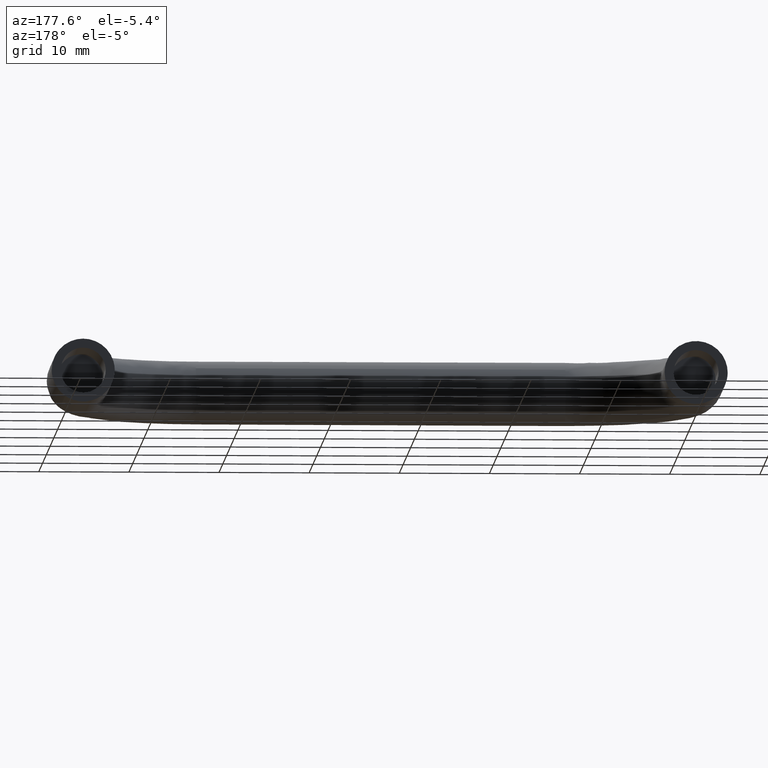
[diagram: clean part render]
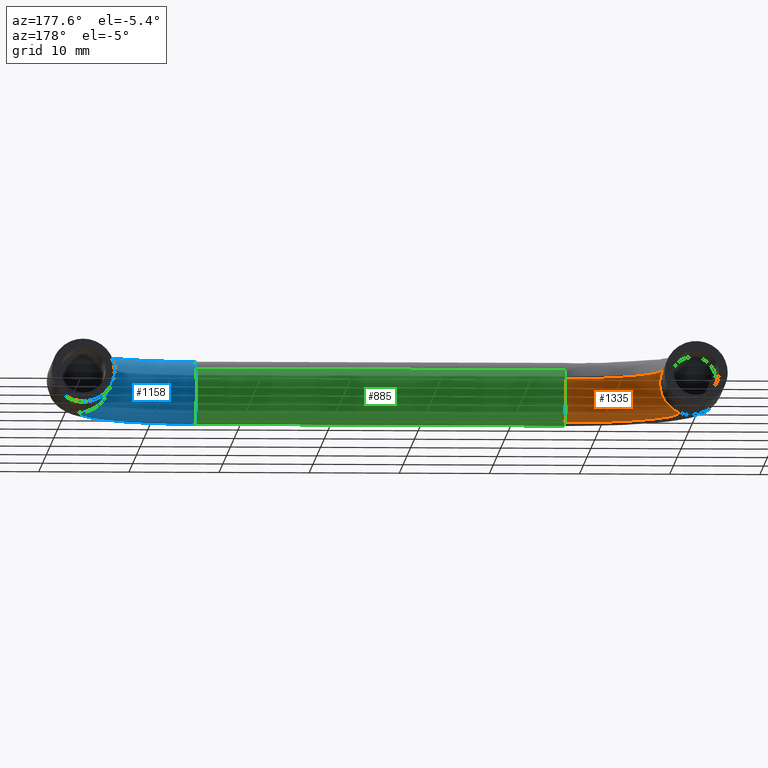
[diagram: same view with three faces highlighted in distinct colors, each labeled with its STEP entity id]
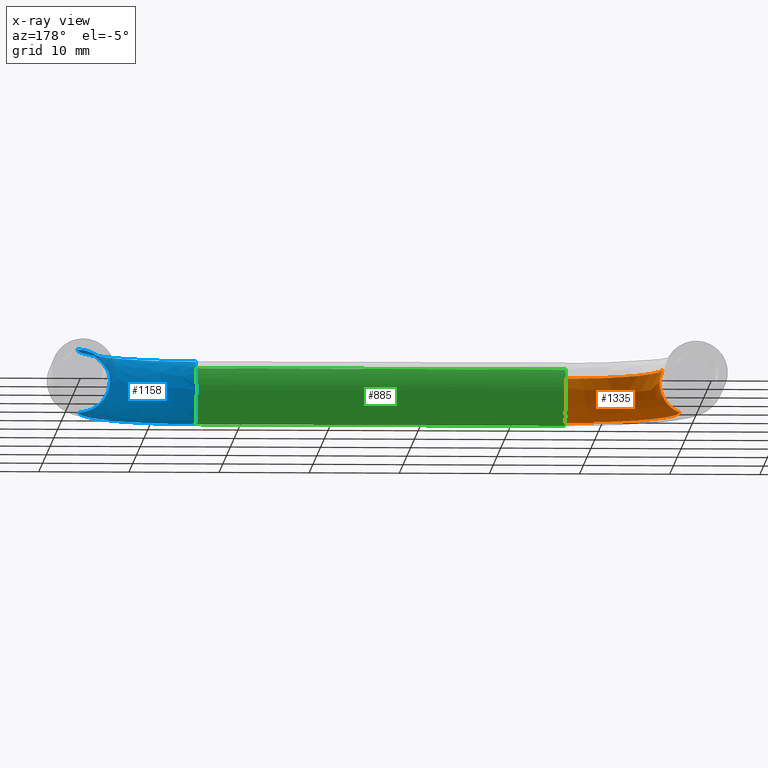
[diagram: x-ray of the same camera — body ghosted, the three highlighted faces saturated]
A machine part, auxiliary view with three faces highlighted in distinct colors.
The next image is the same camera in x-ray (body ghosted, the three faces saturated) — at least one of them is partly hidden behind the body in this view.
Their STEP definitions:

[orange] entity #1335 — the highlighted face is a freeform B-spline surface patch.
#822=CARTESIAN_POINT('',(13.500000000095170,-25.234238042859719,-3.263103839576120));
#823=VERTEX_POINT('',#822);
#839=CARTESIAN_POINT('',(13.500000000000000,-23.0,0.0));
#840=VERTEX_POINT('',#839);
#841=CARTESIAN_POINT('',(13.500000000000000,-23.0,0.0));
#842=CARTESIAN_POINT('',(13.500000000000005,-23.000000000000007,-2.396440179037326));
#843=CARTESIAN_POINT('',(13.500000000095167,-25.234238042859719,-3.263103839576120));
#851=(BOUNDED_CURVE()B_SPLINE_CURVE(2,(#841,#842,#843),.UNSPECIFIED.,.F.,.U.)B_SPLINE_CURVE_WITH_KNOTS((3,3),(0.0,0.188590655692032),.UNSPECIFIED.)CURVE()GEOMETRIC_REPRESENTATION_ITEM()RATIONAL_B_SPLINE_CURVE((1.0,0.779052303264885,0.891453974537126))REPRESENTATION_ITEM(''));
#852=EDGE_CURVE('',#840,#823,#851,.T.);
#854=CARTESIAN_POINT('',(13.500000000061361,-23.314629102676701,1.450314533639424));
#855=VERTEX_POINT('',#854);
#856=CARTESIAN_POINT('',(13.500000000061361,-23.314629102676705,1.450314533639423));
#857=CARTESIAN_POINT('',(13.500000000000002,-23.000000000000004,0.759284854397074));
#858=CARTESIAN_POINT('',(13.500000000000000,-23.0,0.0));
#866=(BOUNDED_CURVE()B_SPLINE_CURVE(2,(#856,#857,#858),.UNSPECIFIED.,.F.,.U.)B_SPLINE_CURVE_WITH_KNOTS((3,3),(0.929624510025987,1.0),.UNSPECIFIED.)CURVE()GEOMETRIC_REPRESENTATION_ITEM()RATIONAL_B_SPLINE_CURVE((0.881519651436127,0.917549984863750,1.0))REPRESENTATION_ITEM(''));
#867=EDGE_CURVE('',#855,#840,#866,.T.);
#992=CARTESIAN_POINT('',(3.185370897351431,-13.000000000036000,1.450314533577650));
#993=VERTEX_POINT('',#992);
#1009=CARTESIAN_POINT('',(3.500000000000002,-13.0,0.0));
#1010=VERTEX_POINT('',#1009);
#1011=CARTESIAN_POINT('',(3.185370897351431,-13.000000000036005,1.450314533577651));
#1012=CARTESIAN_POINT('',(3.500000000000002,-13.000000000000002,0.759284854326005));
#1013=CARTESIAN_POINT('',(3.500000000000002,-13.0,0.0));
#1021=(BOUNDED_CURVE()B_SPLINE_CURVE(2,(#1011,#1012,#1013),.UNSPECIFIED.,.F.,.U.)B_SPLINE_CURVE_WITH_KNOTS((3,3),(0.929624510032031,1.0),.UNSPECIFIED.)CURVE()GEOMETRIC_REPRESENTATION_ITEM()RATIONAL_B_SPLINE_CURVE((0.881519651442315,0.917549984870831,1.0))REPRESENTATION_ITEM(''));
#1022=EDGE_CURVE('',#993,#1010,#1021,.T.);
#1024=CARTESIAN_POINT('',(1.265761957616278,-13.000000000306891,-3.263103839391479));
#1025=VERTEX_POINT('',#1024);
#1026=CARTESIAN_POINT('',(3.500000000000002,-13.0,0.0));
#1027=CARTESIAN_POINT('',(3.500000000000001,-13.000000000000005,-2.396440178287418));
#1028=CARTESIAN_POINT('',(1.265761957616278,-13.000000000306889,-3.263103839391479));
#1036=(BOUNDED_CURVE()B_SPLINE_CURVE(2,(#1026,#1027,#1028),.UNSPECIFIED.,.F.,.U.)B_SPLINE_CURVE_WITH_KNOTS((3,3),(0.0,0.188590655646056),.UNSPECIFIED.)CURVE()GEOMETRIC_REPRESENTATION_ITEM()RATIONAL_B_SPLINE_CURVE((1.0,0.779052303318749,0.891453974482322))REPRESENTATION_ITEM(''));
#1037=EDGE_CURVE('',#1010,#1025,#1036,.T.);
#1257=CARTESIAN_POINT('',(3.185370897351431,-13.000000000036005,1.450314533577650));
#1258=CARTESIAN_POINT('',(3.185370897455925,-21.370521651150753,1.450314533476495));
#1259=CARTESIAN_POINT('',(11.376603544444510,-23.093699075006601,1.450314533476494));
#1260=CARTESIAN_POINT('',(12.426808375238373,-23.314629102615278,1.450314533476495));
#1261=CARTESIAN_POINT('',(13.500000000061359,-23.314629102676697,1.450314533639424));
#1269=(BOUNDED_CURVE()B_SPLINE_CURVE(2,(#1257,#1258,#1259,#1260,#1261),.UNSPECIFIED.,.F.,.U.)B_SPLINE_CURVE_WITH_KNOTS((3,2,3),(-3.759886875716464,-2.0,-1.712481691721683),.UNSPECIFIED.)CURVE()GEOMETRIC_REPRESENTATION_ITEM()RATIONAL_B_SPLINE_CURVE((0.940720929714544,0.753120240876726,1.0,0.959666469663066,0.930929567735499))REPRESENTATION_ITEM(''));
#1270=EDGE_CURVE('',#993,#855,#1269,.T.);
#1276=CARTESIAN_POINT('',(1.265761957616278,-13.000000000306887,-3.263103839391479));
#1277=CARTESIAN_POINT('',(1.265761957452467,-22.928321552515879,-3.263103839648232));
#1278=CARTESIAN_POINT('',(10.981427840146894,-24.972191727896671,-3.263103839648231));
#1279=CARTESIAN_POINT('',(12.227081539015725,-25.234238043065425,-3.263103839648230));
#1280=CARTESIAN_POINT('',(13.500000000095163,-25.234238042859715,-3.263103839576120));
#1288=(BOUNDED_CURVE()B_SPLINE_CURVE(2,(#1276,#1277,#1278,#1279,#1280),.UNSPECIFIED.,.F.,.U.)B_SPLINE_CURVE_WITH_KNOTS((3,2,3),(-3.759886875657970,-2.0,-1.712481691716782),.UNSPECIFIED.)CURVE()GEOMETRIC_REPRESENTATION_ITEM()RATIONAL_B_SPLINE_CURVE((0.919560165713161,0.736179404161244,0.977505800795127,0.938079540923555,0.909989052592193))REPRESENTATION_ITEM(''));
#1289=EDGE_CURVE('',#1025,#823,#1288,.T.);
#1294=CARTESIAN_POINT('',(3.214064570996695,-12.231165899150353,1.450314533476495));
#1295=CARTESIAN_POINT('',(2.541064122229520,-21.234979793538425,1.450314533476494));
#1296=CARTESIAN_POINT('',(11.376603544444510,-23.093699075006601,1.450314533476494));
#1297=CARTESIAN_POINT('',(12.821964477289670,-23.397757503833873,1.450314533476494));
#1298=CARTESIAN_POINT('',(14.294572453435666,-23.283979197786042,1.450314533476494));
#1299=CARTESIAN_POINT('',(4.660344557867026,-12.339269763981831,-1.735056363920989));
#1300=CARTESIAN_POINT('',(4.081973040705055,-20.077079615194585,-1.735056363920989));
#1301=CARTESIAN_POINT('',(11.675169077842851,-21.674448967280792,-1.735056363920990));
#1302=CARTESIAN_POINT('',(12.917301378211485,-21.935754491086698,-1.735056363920989));
#1303=CARTESIAN_POINT('',(14.182849582389625,-21.837974271757648,-1.735056363920989));
#1304=CARTESIAN_POINT('',(1.483834860607051,-12.101837884908708,-3.185370897397484));
#1305=CARTESIAN_POINT('',(0.697626879126889,-22.620211773807551,-3.185370897397484));
#1306=CARTESIAN_POINT('',(11.019420315004950,-24.791592100668058,-3.185370897397483));
#1307=CARTESIAN_POINT('',(12.707909978873792,-25.146797158878982,-3.185370897397484));
#1308=CARTESIAN_POINT('',(14.428229997319818,-25.013879844339350,-3.185370897397484));
#1309=CARTESIAN_POINT('',(1.392924605518979,-12.095042693094495,-3.226878236194534));
#1310=CARTESIAN_POINT('',(0.600768439462498,-22.692995053349126,-3.226878236194533));
#1311=CARTESIAN_POINT('',(11.000653085251262,-24.880803311843238,-3.226878236194534));
#1312=CARTESIAN_POINT('',(12.701917292768208,-25.238695731793616,-3.226878236194533));
#1313=CARTESIAN_POINT('',(14.435252672595825,-25.104772809655362,-3.226878236194534));
#1314=CARTESIAN_POINT('',(1.299795859873387,-12.088081677646185,-3.263103769791575));
#1315=CARTESIAN_POINT('',(0.501546355194939,-22.767554469348042,-3.263103769791575));
#1316=CARTESIAN_POINT('',(10.981427877220447,-24.972191551665254,-3.263103769791575));
#1317=CARTESIAN_POINT('',(12.695778366642429,-25.332836913268338,-3.263103769791575));
#1318=CARTESIAN_POINT('',(14.442446722803872,-25.197883843605148,-3.263103769791574));
#1326=(BOUNDED_SURFACE()B_SPLINE_SURFACE(2,2,((#1294,#1299,#1304,#1309,#1314),(#1295,#1300,#1305,#1310,#1315),(#1296,#1301,#1306,#1311,#1316),(#1297,#1302,#1307,#1312,#1317),(#1298,#1303,#1308,#1313,#1318)),.UNSPECIFIED.,.F.,.F.,.U.)B_SPLINE_SURFACE_WITH_KNOTS((3,2,3),(3,2,3),(0.0,18.391132428981710,22.240763251290900),(0.0,5.798989873223330,6.030949246938355),.UNSPECIFIED.)GEOMETRIC_REPRESENTATION_ITEM()RATIONAL_B_SPLINE_SURFACE(((0.963991257828157,0.681644755414839,0.963991257828157,0.952697408502289,0.942307066260837),(0.738773922018271,0.522392050022901,0.738773922018271,0.730118655392770,0.722155809436964),(1.0,0.707106781186548,1.0,0.988284282420452,0.977505821353428),(0.945320171812547,0.668442303881085,0.945320171812547,0.934245067657341,0.924055970989588),(0.911953783596509,0.644848704509821,0.911953783596509,0.901269590622292,0.891440132270872)))REPRESENTATION_ITEM('')SURFACE());
#1327=ORIENTED_EDGE('',*,*,#852,.T.);
#1328=ORIENTED_EDGE('',*,*,#1289,.F.);
#1329=ORIENTED_EDGE('',*,*,#1037,.F.);
#1330=ORIENTED_EDGE('',*,*,#1022,.F.);
#1331=ORIENTED_EDGE('',*,*,#1270,.T.);
#1332=ORIENTED_EDGE('',*,*,#867,.T.);
#1333=EDGE_LOOP('',(#1327,#1328,#1329,#1330,#1331,#1332));
#1334=FACE_OUTER_BOUND('',#1333,.T.);
#1335=ADVANCED_FACE('',(#1334),#1326,.T.);

[blue] entity #1158 — the highlighted face is a freeform B-spline surface patch.
#446=CARTESIAN_POINT('',(67.912044665790148,-13.000000000114040,-3.498894662487573));
#447=VERTEX_POINT('',#446);
#465=CARTESIAN_POINT('',(64.500000000000000,-13.0,0.0));
#466=VERTEX_POINT('',#465);
#467=CARTESIAN_POINT('',(64.500000000000000,-13.0,0.0));
#468=CARTESIAN_POINT('',(64.500000000000000,-13.000000000000002,-3.413122566323593));
#469=CARTESIAN_POINT('',(67.912044665790148,-13.000000000114047,-3.498894662487573));
#477=(BOUNDED_CURVE()B_SPLINE_CURVE(2,(#467,#468,#469),.UNSPECIFIED.,.F.,.U.)B_SPLINE_CURVE_WITH_KNOTS((3,3),(0.0,0.245579891753988),.UNSPECIFIED.)CURVE()GEOMETRIC_REPRESENTATION_ITEM()RATIONAL_B_SPLINE_CURVE((1.0,0.712285260113261,0.989826157645819))REPRESENTATION_ITEM(''));
#478=EDGE_CURVE('',#466,#447,#477,.T.);
#480=CARTESIAN_POINT('',(68.087955335170491,-13.000000000124439,3.498894662463424));
#481=VERTEX_POINT('',#480);
#482=CARTESIAN_POINT('',(68.087955335170491,-13.000000000124436,3.498894662463424));
#483=CARTESIAN_POINT('',(68.043984613551174,-12.999999999999996,3.500000000000000));
#484=CARTESIAN_POINT('',(68.0,-13.0,3.500000000000000));
#485=CARTESIAN_POINT('',(64.500000000000000,-13.0,3.500000000000000));
#486=CARTESIAN_POINT('',(64.500000000000000,-13.0,0.0));
#494=(BOUNDED_CURVE()B_SPLINE_CURVE(2,(#482,#483,#484,#485,#486),.UNSPECIFIED.,.F.,.U.)B_SPLINE_CURVE_WITH_KNOTS((3,2,3),(0.745579891657905,0.750000000000000,1.0),.UNSPECIFIED.)CURVE()GEOMETRIC_REPRESENTATION_ITEM()RATIONAL_B_SPLINE_CURVE((0.989826157428643,0.994821520960718,1.0,0.707106781186547,1.0))REPRESENTATION_ITEM(''));
#495=EDGE_CURVE('',#481,#466,#494,.T.);
#662=CARTESIAN_POINT('',(54.500000000053802,-26.587955334720451,3.498894662474738));
#663=VERTEX_POINT('',#662);
#664=CARTESIAN_POINT('',(54.499999999999993,-24.078439901263589,2.527062857985050));
#665=VERTEX_POINT('',#664);
#666=CARTESIAN_POINT('',(54.500000000053802,-26.587955334720448,3.498894662474738));
#667=CARTESIAN_POINT('',(54.500000000000007,-26.543984613100921,3.500000000000000));
#668=CARTESIAN_POINT('',(54.500000000000000,-26.500000000000000,3.500000000000000));
#669=CARTESIAN_POINT('',(54.500000000000000,-25.093766253105734,3.500000000000000));
#670=CARTESIAN_POINT('',(54.499999999999993,-24.078439901263582,2.527062857985051));
#678=(BOUNDED_CURVE()B_SPLINE_CURVE(2,(#666,#667,#668,#669,#670),.UNSPECIFIED.,.F.,.U.)B_SPLINE_CURVE_WITH_KNOTS((3,2,3),(0.745579891702918,0.750000000000000,0.871783468984008),.UNSPECIFIED.)CURVE()GEOMETRIC_REPRESENTATION_ITEM()RATIONAL_B_SPLINE_CURVE((0.989826157530386,0.994821521013454,1.0,0.857321791084023,0.853650360009747))REPRESENTATION_ITEM(''));
#679=EDGE_CURVE('',#663,#665,#678,.T.);
#776=CARTESIAN_POINT('',(54.500000000000000,-23.0,0.0));
#777=VERTEX_POINT('',#776);
#778=CARTESIAN_POINT('',(54.499999999999993,-24.078439901263582,2.527062857985051));
#779=CARTESIAN_POINT('',(54.499999999999993,-23.0,1.493647115877615));
#780=CARTESIAN_POINT('',(54.500000000000000,-23.0,0.0));
#788=(BOUNDED_CURVE()B_SPLINE_CURVE(2,(#778,#779,#780),.UNSPECIFIED.,.F.,.U.)B_SPLINE_CURVE_WITH_KNOTS((3,3),(0.871783468984008,1.0),.UNSPECIFIED.)CURVE()GEOMETRIC_REPRESENTATION_ITEM()RATIONAL_B_SPLINE_CURVE((0.853650360009747,0.849784990102525,1.0))REPRESENTATION_ITEM(''));
#789=EDGE_CURVE('',#665,#777,#788,.T.);
#791=CARTESIAN_POINT('',(54.500000000178566,-26.412044665609539,-3.498894662483033));
#792=VERTEX_POINT('',#791);
#793=CARTESIAN_POINT('',(54.500000000000000,-23.0,0.0));
#794=CARTESIAN_POINT('',(54.500000000000021,-23.000000000000007,-3.413122565971117));
#795=CARTESIAN_POINT('',(54.500000000178574,-26.412044665609546,-3.498894662483032));
#803=(BOUNDED_CURVE()B_SPLINE_CURVE(2,(#793,#794,#795),.UNSPECIFIED.,.F.,.U.)B_SPLINE_CURVE_WITH_KNOTS((3,3),(0.0,0.245579891735923),.UNSPECIFIED.)CURVE()GEOMETRIC_REPRESENTATION_ITEM()RATIONAL_B_SPLINE_CURVE((1.0,0.712285260134425,0.989826157604988))REPRESENTATION_ITEM(''));
#804=EDGE_CURVE('',#777,#792,#803,.T.);
#1102=CARTESIAN_POINT('',(53.552590282400750,-26.554886387837488,3.498894662491549));
#1103=CARTESIAN_POINT('',(69.138789049349512,-27.644273325487532,3.498894662491549));
#1104=CARTESIAN_POINT('',(68.055240308047999,-12.057667600443301,3.498894662491550));
#1105=CARTESIAN_POINT('',(53.796548017218555,-23.064506969660364,3.586849996543229));
#1106=CARTESIAN_POINT('',(65.369305001830512,-23.873377078411252,3.586849996543232));
#1107=CARTESIAN_POINT('',(64.564769755516636,-12.300317927298524,3.586849996543231));
#1108=CARTESIAN_POINT('',(53.802680635125114,-22.976765692112373,0.087955334051682));
#1109=CARTESIAN_POINT('',(65.274547582535689,-23.778584159195521,0.087955334051682));
#1110=CARTESIAN_POINT('',(64.477026187030063,-12.306417679538880,0.087955334051682));
#1111=CARTESIAN_POINT('',(53.808813253031708,-22.889024414564378,-3.410939328439867));
#1112=CARTESIAN_POINT('',(65.179790163240938,-23.683791239979850,-3.410939328439867));
#1113=CARTESIAN_POINT('',(64.389282618543547,-12.312517431779234,-3.410939328439867));
#1114=CARTESIAN_POINT('',(53.564855518213903,-26.379403832741488,-3.498894662491549));
#1115=CARTESIAN_POINT('',(68.949274210759896,-27.454687487056120,-3.498894662491549));
#1116=CARTESIAN_POINT('',(67.879753171074938,-12.069867104924016,-3.498894662491550));
#1124=(BOUNDED_SURFACE()B_SPLINE_SURFACE(2,2,((#1102,#1105,#1108,#1111,#1114),(#1103,#1106,#1109,#1112,#1115),(#1104,#1107,#1110,#1113,#1116)),.UNSPECIFIED.,.F.,.F.,.U.)B_SPLINE_SURFACE_WITH_KNOTS((3,3),(3,2,3),(0.0,24.762287197434809),(0.0,5.798989873223346,11.597979746446690),.UNSPECIFIED.)GEOMETRIC_REPRESENTATION_ITEM()RATIONAL_B_SPLINE_SURFACE(((0.916719231637393,0.648218385134922,0.916719231637393,0.648218385134922,0.916719231637393),(0.603246903106969,0.426559975916722,0.603246903106969,0.426559975916722,0.603246903106969),(0.921825342006071,0.651828950402101,0.921825342006071,0.651828950402101,0.921825342006071)))REPRESENTATION_ITEM('')SURFACE());
#1125=ORIENTED_EDGE('',*,*,#495,.T.);
#1126=ORIENTED_EDGE('',*,*,#478,.T.);
#1127=CARTESIAN_POINT('',(54.500000000178581,-26.412044665609546,-3.498894662483033));
#1128=CARTESIAN_POINT('',(67.912044665720245,-26.412044665591164,-3.498894662491548));
#1129=CARTESIAN_POINT('',(67.912044665790162,-13.000000000114044,-3.498894662487574));
#1137=(BOUNDED_CURVE()B_SPLINE_CURVE(2,(#1127,#1128,#1129),.UNSPECIFIED.,.F.,.U.)B_SPLINE_CURVE_WITH_KNOTS((3,3),(-1.733067862705939,-0.253787686459524),.UNSPECIFIED.)CURVE()GEOMETRIC_REPRESENTATION_ITEM()RATIONAL_B_SPLINE_CURVE((0.889551170316115,0.630646846327764,0.894193516994569))REPRESENTATION_ITEM(''));
#1138=EDGE_CURVE('',#792,#447,#1137,.T.);
#1139=ORIENTED_EDGE('',*,*,#1138,.F.);
#1140=ORIENTED_EDGE('',*,*,#804,.F.);
#1141=ORIENTED_EDGE('',*,*,#789,.F.);
#1142=ORIENTED_EDGE('',*,*,#679,.F.);
#1143=CARTESIAN_POINT('',(54.500000000053802,-26.587955334720455,3.498894662474739));
#1144=CARTESIAN_POINT('',(68.087955333802810,-26.587955333944080,3.498894662491548));
#1145=CARTESIAN_POINT('',(68.087955335170491,-13.000000000124436,3.498894662463424));
#1153=(BOUNDED_CURVE()B_SPLINE_CURVE(2,(#1143,#1144,#1145),.UNSPECIFIED.,.F.,.U.)B_SPLINE_CURVE_WITH_KNOTS((3,3),(-1.733067862725459,-0.253787686460898),.UNSPECIFIED.)CURVE()GEOMETRIC_REPRESENTATION_ITEM()RATIONAL_B_SPLINE_CURVE((0.889551170322948,0.630646846324527,0.894193516994079))REPRESENTATION_ITEM(''));
#1154=EDGE_CURVE('',#663,#481,#1153,.T.);
#1155=ORIENTED_EDGE('',*,*,#1154,.T.);
#1156=EDGE_LOOP('',(#1125,#1126,#1139,#1140,#1141,#1142,#1155));
#1157=FACE_OUTER_BOUND('',#1156,.T.);
#1158=ADVANCED_FACE('',(#1157),#1124,.T.);

[green] entity #885 — the highlighted face is a freeform B-spline surface patch.
#664=CARTESIAN_POINT('',(54.499999999999993,-24.078439901263589,2.527062857985050));
#665=VERTEX_POINT('',#664);
#681=CARTESIAN_POINT('',(13.500000000029130,-24.078439724854910,2.527062688919497));
#682=VERTEX_POINT('',#681);
#683=CARTESIAN_POINT('',(13.500000000029130,-24.078439724854910,2.527062688919497));
#684=CARTESIAN_POINT('',(54.499999999999993,-24.078439901263589,2.527062857985050));
#685=QUASI_UNIFORM_CURVE('',1,(#683,#684),.UNSPECIFIED.,.F.,.U.);
#686=EDGE_CURVE('',#682,#665,#685,.T.);
#705=CARTESIAN_POINT('',(13.500000000000000,-28.773066939401790,-2.661421929908141));
#706=VERTEX_POINT('',#705);
#720=CARTESIAN_POINT('',(54.499999999999993,-28.773066924043150,-2.661421943025630));
#721=VERTEX_POINT('',#720);
#722=CARTESIAN_POINT('',(13.500000000000000,-28.773066939401790,-2.661421929908141));
#723=CARTESIAN_POINT('',(54.499999999999993,-28.773066924043150,-2.661421943025630));
#724=QUASI_UNIFORM_CURVE('',1,(#722,#723),.UNSPECIFIED.,.F.,.U.);
#725=EDGE_CURVE('',#706,#721,#724,.T.);
#758=CARTESIAN_POINT('',(12.474999999995530,-28.773068169155639,-2.661420879600109));
#759=CARTESIAN_POINT('',(12.474999999995532,-26.111647289555531,-4.934489048755750));
#760=CARTESIAN_POINT('',(12.474999999995530,-23.838579120399888,-2.273068169155640));
#761=CARTESIAN_POINT('',(12.474999999995530,-21.691999375728805,0.240253793518473));
#762=CARTESIAN_POINT('',(12.474999999995534,-24.078439661960871,2.527062628673018));
#763=CARTESIAN_POINT('',(55.550625000183153,-28.773068169155628,-2.661420879600109));
#764=CARTESIAN_POINT('',(55.550625000183146,-26.111647289555531,-4.934489048755750));
#765=CARTESIAN_POINT('',(55.550625000183153,-23.838579120399888,-2.273068169155640));
#766=CARTESIAN_POINT('',(55.550625000183146,-21.691999375728805,0.240253793518473));
#767=CARTESIAN_POINT('',(55.550625000183146,-24.078439661960871,2.527062628673018));
#775=(BOUNDED_SURFACE()B_SPLINE_SURFACE(2,1,((#758,#763),(#759,#764),(#760,#765),(#761,#766),(#762,#767)),.UNSPECIFIED.,.F.,.F.,.U.)B_SPLINE_SURFACE_WITH_KNOTS((3,2,3),(2,2),(0.0,5.798989873223331,11.366020151517731),(0.0,43.075625000187607),.UNSPECIFIED.)GEOMETRIC_REPRESENTATION_ITEM()RATIONAL_B_SPLINE_SURFACE(((1.0,1.0),(0.707106781186548,0.707106781186548),(1.0,1.0),(0.718822509939086,0.718822509939086),(0.977505800795127,0.977505800795127)))REPRESENTATION_ITEM('')SURFACE());
#776=CARTESIAN_POINT('',(54.500000000000000,-23.0,0.0));
#777=VERTEX_POINT('',#776);
#778=CARTESIAN_POINT('',(54.499999999999993,-24.078439901263582,2.527062857985051));
#779=CARTESIAN_POINT('',(54.499999999999993,-23.0,1.493647115877615));
#780=CARTESIAN_POINT('',(54.500000000000000,-23.0,0.0));
#788=(BOUNDED_CURVE()B_SPLINE_CURVE(2,(#778,#779,#780),.UNSPECIFIED.,.F.,.U.)B_SPLINE_CURVE_WITH_KNOTS((3,3),(0.871783468984008,1.0),.UNSPECIFIED.)CURVE()GEOMETRIC_REPRESENTATION_ITEM()RATIONAL_B_SPLINE_CURVE((0.853650360009747,0.849784990102525,1.0))REPRESENTATION_ITEM(''));
#789=EDGE_CURVE('',#665,#777,#788,.T.);
#790=ORIENTED_EDGE('',*,*,#789,.T.);
#791=CARTESIAN_POINT('',(54.500000000178566,-26.412044665609539,-3.498894662483033));
#792=VERTEX_POINT('',#791);
#793=CARTESIAN_POINT('',(54.500000000000000,-23.0,0.0));
#794=CARTESIAN_POINT('',(54.500000000000021,-23.000000000000007,-3.413122565971117));
#795=CARTESIAN_POINT('',(54.500000000178574,-26.412044665609546,-3.498894662483032));
#803=(BOUNDED_CURVE()B_SPLINE_CURVE(2,(#793,#794,#795),.UNSPECIFIED.,.F.,.U.)B_SPLINE_CURVE_WITH_KNOTS((3,3),(0.0,0.245579891735923),.UNSPECIFIED.)CURVE()GEOMETRIC_REPRESENTATION_ITEM()RATIONAL_B_SPLINE_CURVE((1.0,0.712285260134425,0.989826157604988))REPRESENTATION_ITEM(''));
#804=EDGE_CURVE('',#777,#792,#803,.T.);
#805=ORIENTED_EDGE('',*,*,#804,.T.);
#806=CARTESIAN_POINT('',(54.500000000178566,-26.412044665609550,-3.498894662483033));
#807=CARTESIAN_POINT('',(54.500000000000000,-26.456015387229236,-3.500000000000000));
#808=CARTESIAN_POINT('',(54.500000000000000,-26.500000000000000,-3.500000000000000));
#809=CARTESIAN_POINT('',(54.500000000000000,-27.791217239740732,-3.500000000000001));
#810=CARTESIAN_POINT('',(54.499999999999986,-28.773066924043157,-2.661421943025630));
#818=(BOUNDED_CURVE()B_SPLINE_CURVE(2,(#806,#807,#808,#809,#810),.UNSPECIFIED.,.F.,.U.)B_SPLINE_CURVE_WITH_KNOTS((3,2,3),(0.245579891735923,0.250000000000000,0.363143090649202),.UNSPECIFIED.)CURVE()GEOMETRIC_REPRESENTATION_ITEM()RATIONAL_B_SPLINE_CURVE((0.989826157604988,0.994821521052123,1.0,0.867444623973012,0.854871047352908))REPRESENTATION_ITEM(''));
#819=EDGE_CURVE('',#792,#721,#818,.T.);
#820=ORIENTED_EDGE('',*,*,#819,.T.);
#821=ORIENTED_EDGE('',*,*,#725,.F.);
#822=CARTESIAN_POINT('',(13.500000000095170,-25.234238042859719,-3.263103839576120));
#823=VERTEX_POINT('',#822);
#824=CARTESIAN_POINT('',(13.500000000095167,-25.234238042859719,-3.263103839576120));
#825=CARTESIAN_POINT('',(13.499999999999998,-25.844950638675016,-3.500000000000000));
#826=CARTESIAN_POINT('',(13.500000000000000,-26.500000000000000,-3.500000000000000));
#827=CARTESIAN_POINT('',(13.500000000000002,-27.791217251214174,-3.500000000000000));
#828=CARTESIAN_POINT('',(13.499999999999996,-28.773066939401783,-2.661421929908142));
#836=(BOUNDED_CURVE()B_SPLINE_CURVE(2,(#824,#825,#826,#827,#828),.UNSPECIFIED.,.F.,.U.)B_SPLINE_CURVE_WITH_KNOTS((3,2,3),(0.188590655692032,0.250000000000000,0.363143091521298),.UNSPECIFIED.)CURVE()GEOMETRIC_REPRESENTATION_ITEM()RATIONAL_B_SPLINE_CURVE((0.891453974537126,0.928054477921662,1.0,0.867444622951288,0.854871047159077))REPRESENTATION_ITEM(''));
#837=EDGE_CURVE('',#823,#706,#836,.T.);
#838=ORIENTED_EDGE('',*,*,#837,.F.);
#839=CARTESIAN_POINT('',(13.500000000000000,-23.0,0.0));
#840=VERTEX_POINT('',#839);
#841=CARTESIAN_POINT('',(13.500000000000000,-23.0,0.0));
#842=CARTESIAN_POINT('',(13.500000000000005,-23.000000000000007,-2.396440179037326));
#843=CARTESIAN_POINT('',(13.500000000095167,-25.234238042859719,-3.263103839576120));
#851=(BOUNDED_CURVE()B_SPLINE_CURVE(2,(#841,#842,#843),.UNSPECIFIED.,.F.,.U.)B_SPLINE_CURVE_WITH_KNOTS((3,3),(0.0,0.188590655692032),.UNSPECIFIED.)CURVE()GEOMETRIC_REPRESENTATION_ITEM()RATIONAL_B_SPLINE_CURVE((1.0,0.779052303264885,0.891453974537126))REPRESENTATION_ITEM(''));
#852=EDGE_CURVE('',#840,#823,#851,.T.);
#853=ORIENTED_EDGE('',*,*,#852,.F.);
#854=CARTESIAN_POINT('',(13.500000000061361,-23.314629102676701,1.450314533639424));
#855=VERTEX_POINT('',#854);
#856=CARTESIAN_POINT('',(13.500000000061361,-23.314629102676705,1.450314533639423));
#857=CARTESIAN_POINT('',(13.500000000000002,-23.000000000000004,0.759284854397074));
#858=CARTESIAN_POINT('',(13.500000000000000,-23.0,0.0));
#866=(BOUNDED_CURVE()B_SPLINE_CURVE(2,(#856,#857,#858),.UNSPECIFIED.,.F.,.U.)B_SPLINE_CURVE_WITH_KNOTS((3,3),(0.929624510025987,1.0),.UNSPECIFIED.)CURVE()GEOMETRIC_REPRESENTATION_ITEM()RATIONAL_B_SPLINE_CURVE((0.881519651436127,0.917549984863750,1.0))REPRESENTATION_ITEM(''));
#867=EDGE_CURVE('',#855,#840,#866,.T.);
#868=ORIENTED_EDGE('',*,*,#867,.F.);
#869=CARTESIAN_POINT('',(13.500000000029132,-24.078439724854910,2.527062688919497));
#870=CARTESIAN_POINT('',(13.500000000043052,-23.593145737844154,2.062029277844743));
#871=CARTESIAN_POINT('',(13.500000000061355,-23.314629102676697,1.450314533639424));
#879=(BOUNDED_CURVE()B_SPLINE_CURVE(2,(#869,#870,#871),.UNSPECIFIED.,.F.,.U.)B_SPLINE_CURVE_WITH_KNOTS((3,3),(0.871783490050663,0.929624510025988),.UNSPECIFIED.)CURVE()GEOMETRIC_REPRESENTATION_ITEM()RATIONAL_B_SPLINE_CURVE((0.853650358739550,0.851906625135717,0.881519651436128))REPRESENTATION_ITEM(''));
#880=EDGE_CURVE('',#682,#855,#879,.T.);
#881=ORIENTED_EDGE('',*,*,#880,.F.);
#882=ORIENTED_EDGE('',*,*,#686,.T.);
#883=EDGE_LOOP('',(#790,#805,#820,#821,#838,#853,#868,#881,#882));
#884=FACE_OUTER_BOUND('',#883,.T.);
#885=ADVANCED_FACE('',(#884),#775,.T.);